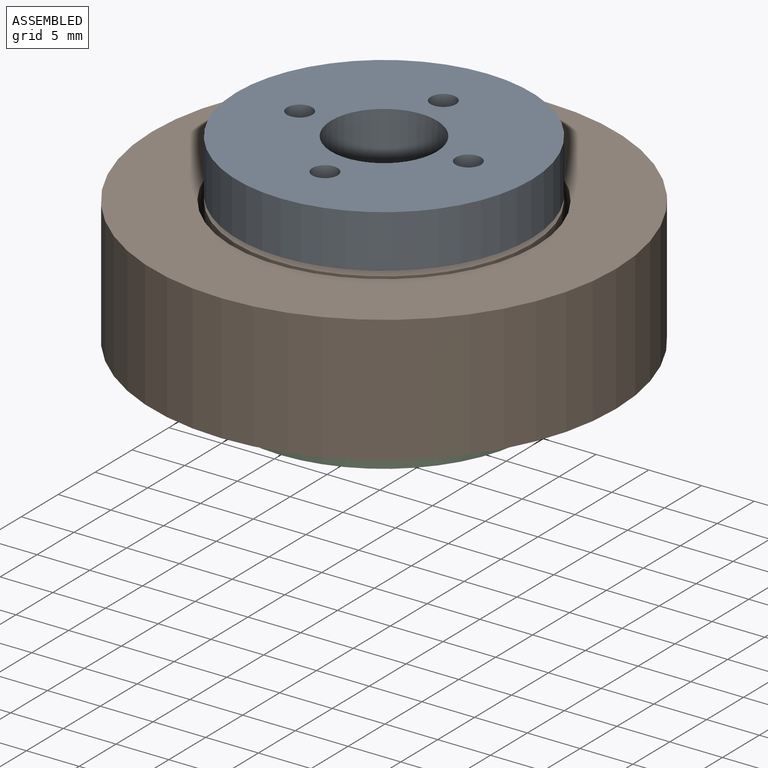
[diagram: assembled view]
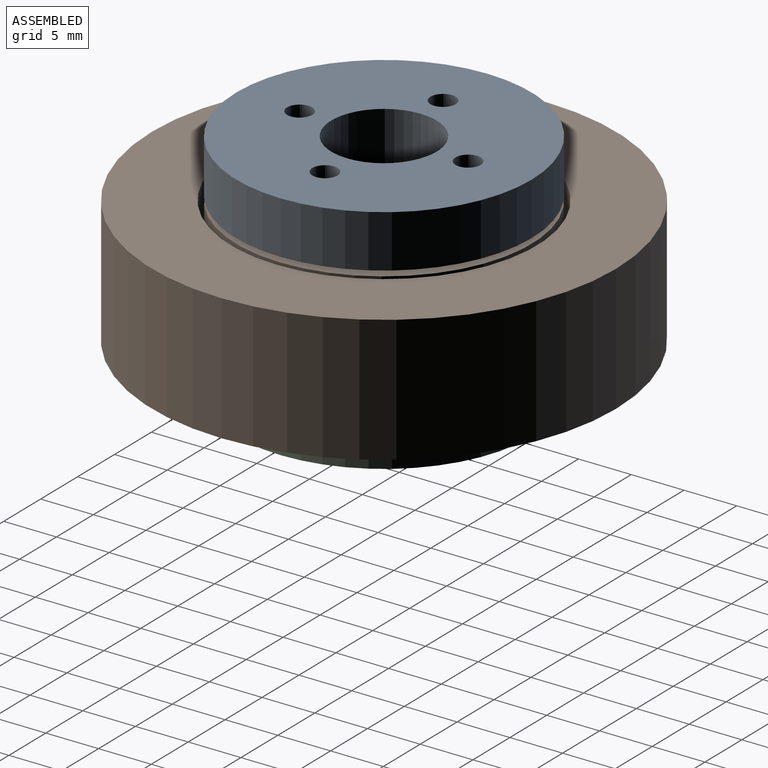
[diagram: assembled view, second angle]
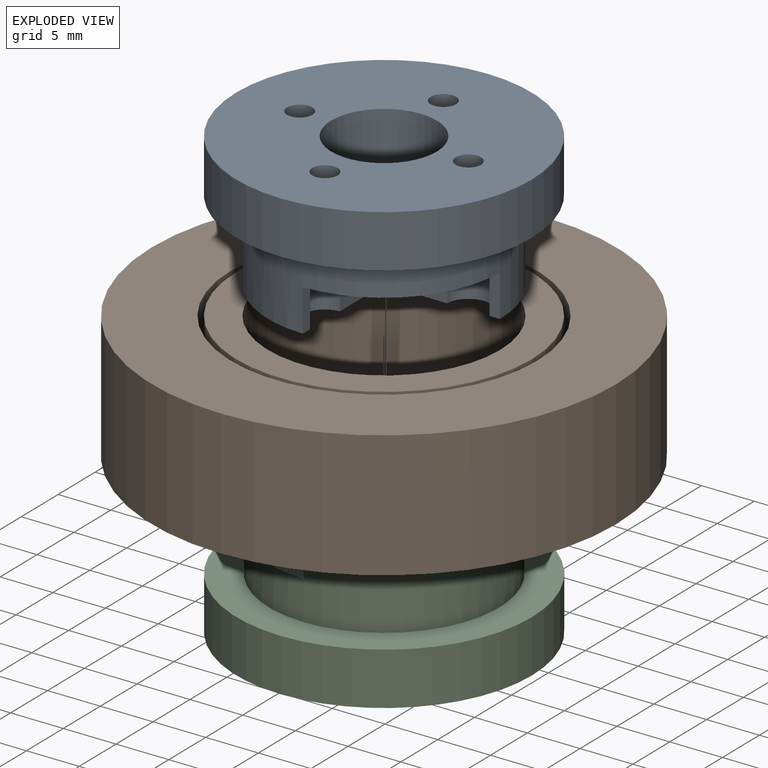
[diagram: exploded view]
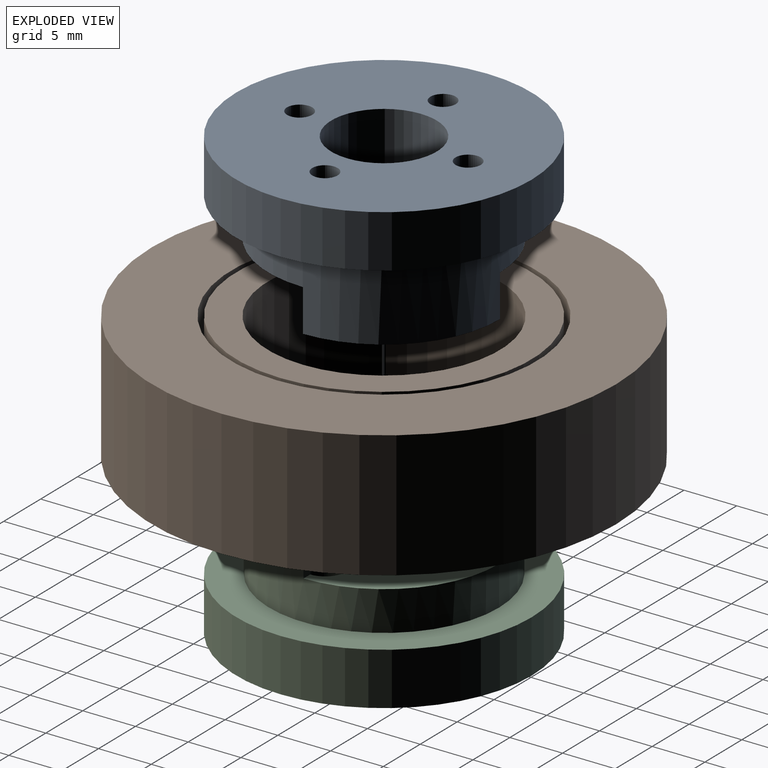
[diagram: exploded view, second angle]
ASSEMBLY  parts=3 mates=2
PART A: 31 faces, bbox 28x28x12.8 mm
  f0: plane 11x11mm, normal (0,0,-1), area 77.5mm2, adj f2,f3,f4,f7,f22,f23,f26,f27
  f1: plane 11x11mm, normal (0,0,-1), area 77.6mm2, adj f2,f5,f6,f7,f21,f24,f28,f29
  f2: cylinder r=11mm len=22mm, axis (0,0,1), area 397.4mm2, adj f0,f1,f10,f23,f24,f25,f26,f29
  f3: cylinder r=2mm len=9.55mm, axis (0,0,-1), area 95.1mm2, adj f0,f14,f26,f27,f30
  f4: cylinder r=2mm len=9.55mm, axis (0,0,-1), area 94.9mm2, adj f0,f16,f22,f23,f25
  f5: cylinder r=2mm len=9.55mm, axis (0,0,-1), area 94.9mm2, adj f1,f18,f21,f24,f25
  f6: cylinder r=2mm len=9.55mm, axis (0,0,-1), area 94.9mm2, adj f1,f20,f28,f29,f30
  f7: cylinder r=2.5mm len=7.75mm, axis (0,0,1), area 90.3mm2, adj f0,f1,f12,f21,f22,f25,f27,f28
  f8: cylinder r=14mm len=28mm, axis (0,0,-1), area 439.8mm2, adj f9,f10
  f9: plane 28x28mm, normal (0,0,1), area 519.1mm2, adj f8,f11,f13,f15,f17,f19
  f10: plane 28x28mm, normal (0,0,-1), area 235.6mm2, adj f2,f8
  f11: cylinder r=5mm len=10mm, axis (0,0,1), area 157.1mm2, adj f9,f12
  f12: plane 10x10mm, normal (0,0,1), area 58.9mm2, adj f7,f11
  f13: cylinder r=1.2mm len=3.2mm, axis (0,0,-1), area 24.1mm2, adj f9,f14
  f14: plane 4x4mm, normal (0,0,-1), area 8mm2, adj f3,f13
  f15: cylinder r=1.2mm len=3.2mm, axis (0,0,-1), area 24.1mm2, adj f9,f16
  f16: plane 4x4mm, normal (0,0,-1), area 8mm2, adj f4,f15
  f17: cylinder r=1.2mm len=3.2mm, axis (0,0,-1), area 24.1mm2, adj f9,f18
  f18: plane 4x4mm, normal (0,0,-1), area 8mm2, adj f5,f17
  f19: cylinder r=1.2mm len=3.2mm, axis (0,0,-1), area 24.1mm2, adj f9,f20
  f20: plane 4x4mm, normal (0,0,-1), area 8mm2, adj f6,f19
  f21: plane 4x3.5mm, normal (1,0,0), area 14mm2, adj f1,f5,f7,f25
  f22: plane 4x3.5mm, normal (0,-1,0), area 14mm2, adj f0,f4,f7,f25
  f23: plane 4x1mm, normal (0,-1,0), area 4mm2, adj f0,f2,f4,f25
  f24: plane 4x1mm, normal (1,0,0), area 4mm2, adj f1,f2,f5,f25
  f25: plane 11x11mm, normal (0,0,-1), area 77.6mm2, adj f2,f4,f5,f7,f21,f22,f23,f24
  f26: plane 4x1mm, normal (-1,0,0), area 4mm2, adj f0,f2,f3,f30
  f27: plane 4x3.5mm, normal (-1,0,0), area 14mm2, adj f0,f3,f7,f30
  f28: plane 4x3.5mm, normal (0,1,0), area 14mm2, adj f1,f6,f7,f30
  f29: plane 4x1mm, normal (0,1,0), area 4mm2, adj f1,f2,f6,f30
  f30: plane 11x11mm, normal (0,0,-1), area 77.7mm2, adj f2,f3,f6,f7,f26,f27,f28,f29
PART B: 12 faces, bbox 44x44x12 mm
  f0: cylinder r=14mm len=28mm, axis (0,0,-1), area 439.8mm2, adj f4,f11
  f1: cylinder r=11mm len=22mm, axis (0,0,-1), area 829.4mm2, adj f3,f4
  f2: cylinder r=14mm len=28mm, axis (0,0,-1), area 439.8mm2, adj f3,f10
  f3: plane 28x28mm, normal (0,0,1), area 235.6mm2, adj f1,f2
  f4: plane 28x28mm, normal (0,0,-1), area 235.6mm2, adj f0,f1
  f5: cylinder r=14.5mm len=29mm, axis (0,0,-1), area 455.5mm2, adj f9,f11
  f6: cylinder r=14.5mm len=29mm, axis (0,0,-1), area 455.5mm2, adj f8,f10
  f7: cylinder r=22mm len=44mm, axis (0,0,-1), area 1658.8mm2, adj f8,f9
  f8: plane 44x44mm, normal (0,0,1), area 860mm2, adj f6,f7
  f9: plane 44x44mm, normal (0,0,-1), area 860mm2, adj f5,f7
  f10: plane 29x29mm, normal (0,0,1), area 44.8mm2, adj f2,f6
  f11: plane 29x29mm, normal (0,0,-1), area 44.8mm2, adj f0,f5
PART C: 36 faces, bbox 28x28x12.8 mm
  f0: plane 10.9x10.9mm, normal (0,0,-1), area 75.9mm2, adj f3,f5,f10,f27,f30,f32,f34,f35
  f1: plane 10.9x10.9mm, normal (0,0,-1), area 75.8mm2, adj f2,f6,f8,f9,f10,f31,f33,f35
  f2: plane 4x0.9mm, normal (0,1,0), area 3.6mm2, adj f1,f4,f9,f35
  f3: plane 4x0.9mm, normal (1,0,0), area 3.6mm2, adj f0,f4,f27,f35
  f4: plane 10.9x10.9mm, normal (0,0,-1), area 75.7mm2, adj f2,f3,f9,f10,f27,f31,f32,f35
  f5: plane 4x0.9mm, normal (0,-1,0), area 3.6mm2, adj f0,f7,f30,f35
  f6: plane 4x0.9mm, normal (-1,0,0), area 3.6mm2, adj f1,f7,f8,f35
  f7: plane 10.9x10.9mm, normal (0,0,-1), area 75.8mm2, adj f5,f6,f8,f10,f30,f33,f34,f35
  f8: cylinder r=2mm len=9.55mm, axis (0,0,-1), area 94.9mm2, adj f1,f6,f7,f22,f33
  f9: cylinder r=2mm len=9.55mm, axis (0,0,-1), area 94.9mm2, adj f1,f2,f4,f24,f31
  f10: cylinder r=2.5mm len=7.75mm, axis (0,0,1), area 90.3mm2, adj f0,f1,f4,f7,f20,f31,f32,f33
  f11: plane 28x28mm, normal (0,0,1), area 538.5mm2, adj f13,f14,f15,f16,f17,f18,f19,f21
  f12: plane 28x28mm, normal (0,0,-1), area 242.5mm2, adj f13,f35
  f13: cylinder r=14mm len=28mm, axis (0,0,-1), area 439.8mm2, adj f11,f12
  f14: plane 5x3.38mm, normal (0.71,0.71,0), area 23.9mm2, adj f11,f15,f19,f20
  f15: plane 5x4.61mm, normal (-0.26,0.97,0), area 23.9mm2, adj f11,f14,f16,f20
  f16: plane 5x4.61mm, normal (-0.97,0.26,0), area 23.9mm2, adj f11,f15,f17,f20
  f17: plane 5x3.38mm, normal (-0.71,-0.71,0), area 23.9mm2, adj f11,f16,f18,f20
  f18: plane 5x4.61mm, normal (0.26,-0.97,0), area 23.9mm2, adj f11,f17,f19,f20
  f19: plane 5x4.61mm, normal (0.97,-0.26,0), area 23.9mm2, adj f11,f14,f18,f20
  f20: plane 9.23x9.22mm, normal (0,0,1), area 39.6mm2, adj f10,f14,f15,f16,f17,f18,f19
  f21: cylinder r=1.2mm len=3.2mm, axis (0,0,-1), area 24.1mm2, adj f11,f22
  f22: plane 4x4mm, normal (0,0,-1), area 8mm2, adj f8,f21
  f23: cylinder r=1.2mm len=3.2mm, axis (0,0,-1), area 24.1mm2, adj f11,f24
  f24: plane 4x4mm, normal (0,0,-1), area 8mm2, adj f9,f23
  f25: cylinder r=1.2mm len=3.2mm, axis (0,0,-1), area 24.1mm2, adj f11,f26
  f26: plane 4x4mm, normal (0,0,-1), area 8mm2, adj f25,f27
  f27: cylinder r=2mm len=9.55mm, axis (0,0,-1), area 94.7mm2, adj f0,f3,f4,f26,f32
  f28: cylinder r=1.2mm len=3.2mm, axis (0,0,-1), area 24.1mm2, adj f11,f29
  f29: plane 4x4mm, normal (0,0,-1), area 8mm2, adj f28,f30
  f30: cylinder r=2mm len=9.55mm, axis (0,0,-1), area 94.9mm2, adj f0,f5,f7,f29,f34
  f31: plane 4x3.5mm, normal (0,1,0), area 14mm2, adj f1,f4,f9,f10
  f32: plane 4x3.5mm, normal (1,0,0), area 14mm2, adj f0,f4,f10,f27
  f33: plane 4x3.5mm, normal (-1,0,0), area 14mm2, adj f1,f7,f8,f10
  f34: plane 4x3.5mm, normal (0,-1,0), area 14mm2, adj f0,f7,f10,f30
  f35: cylinder r=10.9mm len=21.8mm, axis (0,0,1), area 393.8mm2, adj f0,f1,f2,f3,f4,f5,f6,f7
PLACE A t=(-12.74,-47.12,22.89)mm
PLACE B t=(-8.55,-7.92,10.39)mm
PLACE C rot(axis=(0.71,-0.71,0),180deg) t=(31.48,-48.29,10.89)mm
MATE revolute A.f2 <-> B.f1  axis (0,0,1) through (-8.55,-7.92,27.89)mm
MATE parallel A.f30 <-> C.f0  axis (0,0,-1) through (-13.48,-2.98,19.14)mm
